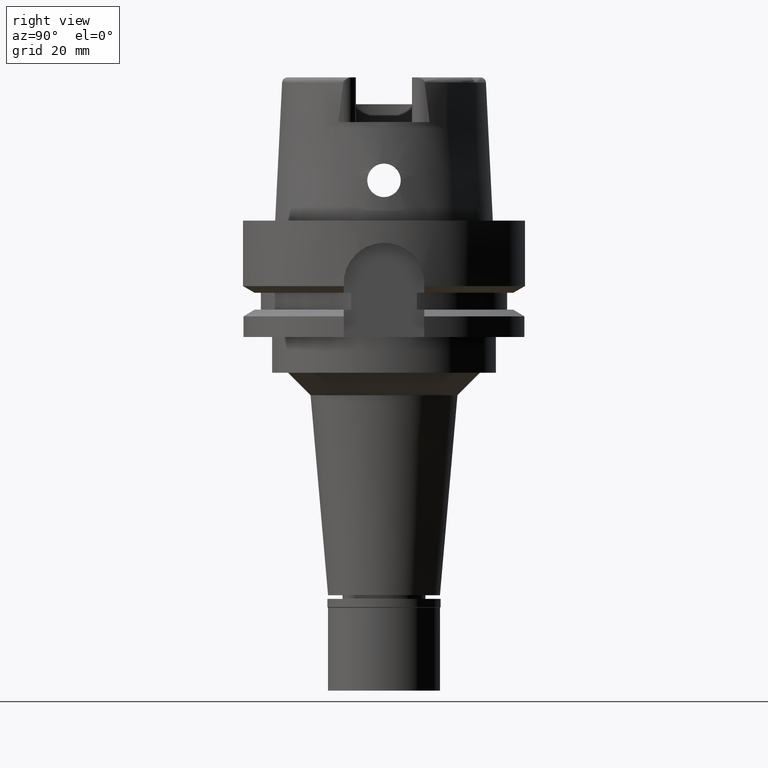
[diagram: clean part render]
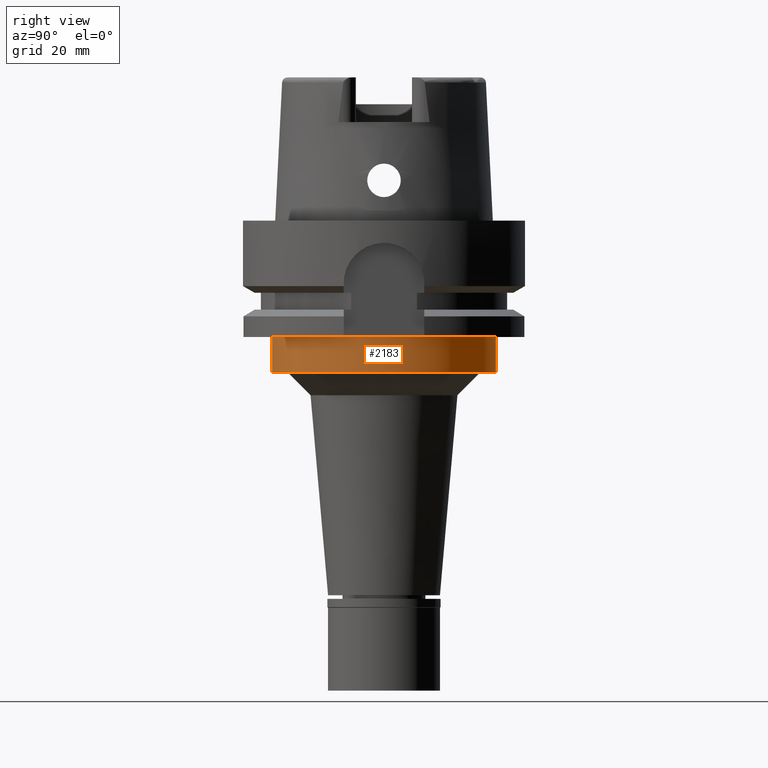
[diagram: same view with one face highlighted and labeled with its STEP entity id]
A machine part, right view. The second image highlights one B-rep face of the part: STEP entity #2183.
In plain terms, the highlighted cylindrical surface (partial cylindrical patch) has radius 25 mm, axis along (0, 0, 1).
Its self-contained STEP definition (entity closure, byte-faithful):
#241 = DIRECTION ( 'NONE',  ( 0.0000000000000000000, 0.0000000000000000000, 1.000000000000000000 ) ) ;
#698 = ORIENTED_EDGE ( 'NONE', *, *, #1174, .F. ) ;
#841 = AXIS2_PLACEMENT_3D ( 'NONE', #2193, #4378, #3881 ) ;
#891 = EDGE_CURVE ( 'NONE', #4591, #3046, #3917, .T. ) ;
#1115 = CIRCLE ( 'NONE', #841, 25.00000000000000000 ) ;
#1138 = CARTESIAN_POINT ( 'NONE',  ( 0.0000000000000000000, 25.00000000000000000, -34.00000000000000000 ) ) ;
#1174 = EDGE_CURVE ( 'NONE', #3799, #3046, #4046, .T. ) ;
#1275 = VECTOR ( 'NONE', #5348, 1000.000000000000000 ) ;
#1372 = EDGE_LOOP ( 'NONE', ( #2024, #3830, #4969, #698 ) ) ;
#1555 = LINE ( 'NONE', #5378, #2423 ) ;
#1642 = DIRECTION ( 'NONE',  ( 0.0000000000000000000, 1.000000000000000000, 0.0000000000000000000 ) ) ;
#1666 = CYLINDRICAL_SURFACE ( 'NONE', #5437, 25.00000000000000000 ) ;
#1699 = AXIS2_PLACEMENT_3D ( 'NONE', #2719, #241, #4449 ) ;
#1968 = EDGE_CURVE ( 'NONE', #4268, #4591, #1555, .T. ) ;
#2024 = ORIENTED_EDGE ( 'NONE', *, *, #2371, .T. ) ;
#2055 = FACE_OUTER_BOUND ( 'NONE', #1372, .T. ) ;
#2183 = ADVANCED_FACE ( 'NONE', ( #2055 ), #1666, .T. ) ;
#2193 = CARTESIAN_POINT ( 'NONE',  ( 0.0000000000000000000, 0.0000000000000000000, -26.00000000000000000 ) ) ;
#2371 = EDGE_CURVE ( 'NONE', #3799, #4268, #1115, .T. ) ;
#2423 = VECTOR ( 'NONE', #4543, 1000.000000000000000 ) ;
#2719 = CARTESIAN_POINT ( 'NONE',  ( 0.0000000000000000000, 0.0000000000000000000, -34.00000000000000000 ) ) ;
#2830 = CARTESIAN_POINT ( 'NONE',  ( 0.0000000000000000000, 25.00000000000000000, -26.00000000000000000 ) ) ;
#3046 = VERTEX_POINT ( 'NONE', #1138 ) ;
#3118 = CARTESIAN_POINT ( 'NONE',  ( 0.0000000000000000000, -25.00000000000000000, -34.00000000000000000 ) ) ;
#3511 = CARTESIAN_POINT ( 'NONE',  ( 0.0000000000000000000, -25.00000000000000000, -26.00000000000000000 ) ) ;
#3747 = CARTESIAN_POINT ( 'NONE',  ( 0.0000000000000000000, 0.0000000000000000000, 0.0000000000000000000 ) ) ;
#3799 = VERTEX_POINT ( 'NONE', #5209 ) ;
#3830 = ORIENTED_EDGE ( 'NONE', *, *, #1968, .T. ) ;
#3881 = DIRECTION ( 'NONE',  ( 0.0000000000000000000, 1.000000000000000000, 0.0000000000000000000 ) ) ;
#3917 = CIRCLE ( 'NONE', #1699, 25.00000000000000000 ) ;
#4046 = LINE ( 'NONE', #2830, #1275 ) ;
#4268 = VERTEX_POINT ( 'NONE', #3511 ) ;
#4378 = DIRECTION ( 'NONE',  ( 0.0000000000000000000, 0.0000000000000000000, -1.000000000000000000 ) ) ;
#4449 = DIRECTION ( 'NONE',  ( 0.0000000000000000000, -1.000000000000000000, 0.0000000000000000000 ) ) ;
#4543 = DIRECTION ( 'NONE',  ( 0.0000000000000000000, 0.0000000000000000000, -1.000000000000000000 ) ) ;
#4591 = VERTEX_POINT ( 'NONE', #3118 ) ;
#4969 = ORIENTED_EDGE ( 'NONE', *, *, #891, .T. ) ;
#5041 = DIRECTION ( 'NONE',  ( 0.0000000000000000000, 0.0000000000000000000, 1.000000000000000000 ) ) ;
#5209 = CARTESIAN_POINT ( 'NONE',  ( 0.0000000000000000000, 25.00000000000000000, -26.00000000000000000 ) ) ;
#5348 = DIRECTION ( 'NONE',  ( 0.0000000000000000000, 0.0000000000000000000, -1.000000000000000000 ) ) ;
#5378 = CARTESIAN_POINT ( 'NONE',  ( 0.0000000000000000000, -25.00000000000000000, -26.00000000000000000 ) ) ;
#5437 = AXIS2_PLACEMENT_3D ( 'NONE', #3747, #5041, #1642 ) ;